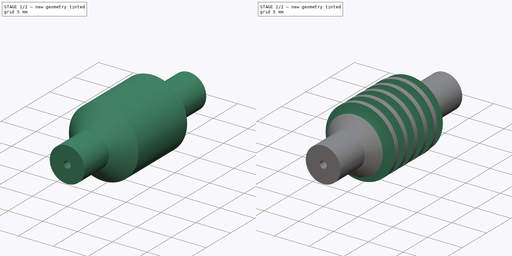
[diagram: build sequence overview — one tinted view per stage of 2, left to right]
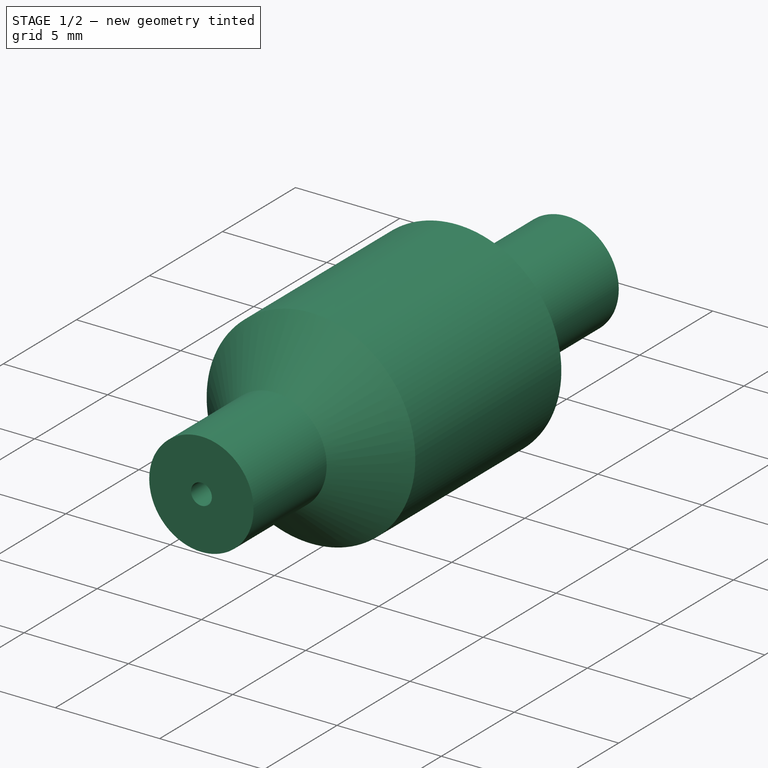
[diagram: stage 1 of 2 — iso view after this stage's code; geometry added in this stage tinted green]
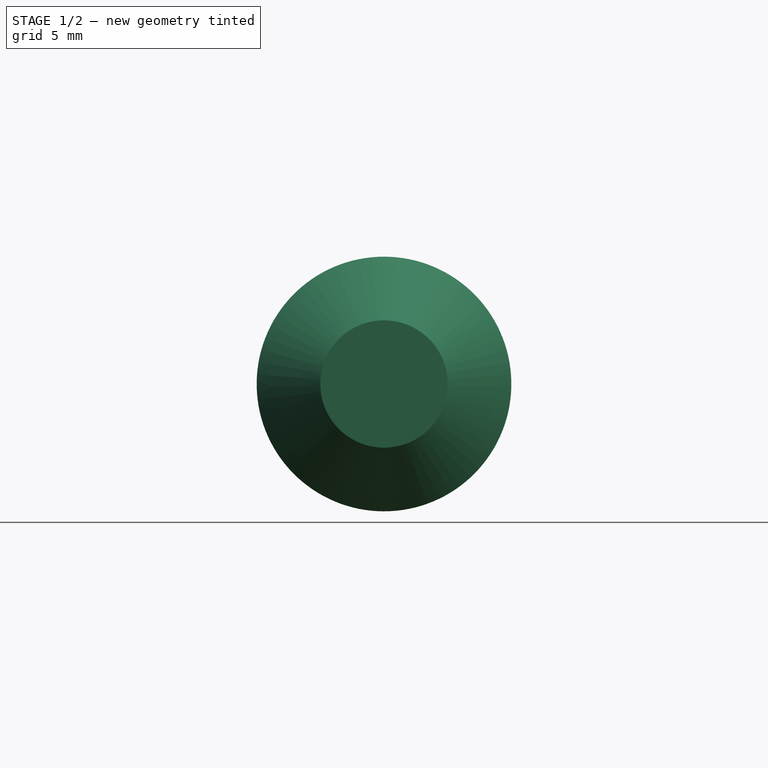
[diagram: stage 1 of 2 — front view after this stage's code; geometry added in this stage tinted green]
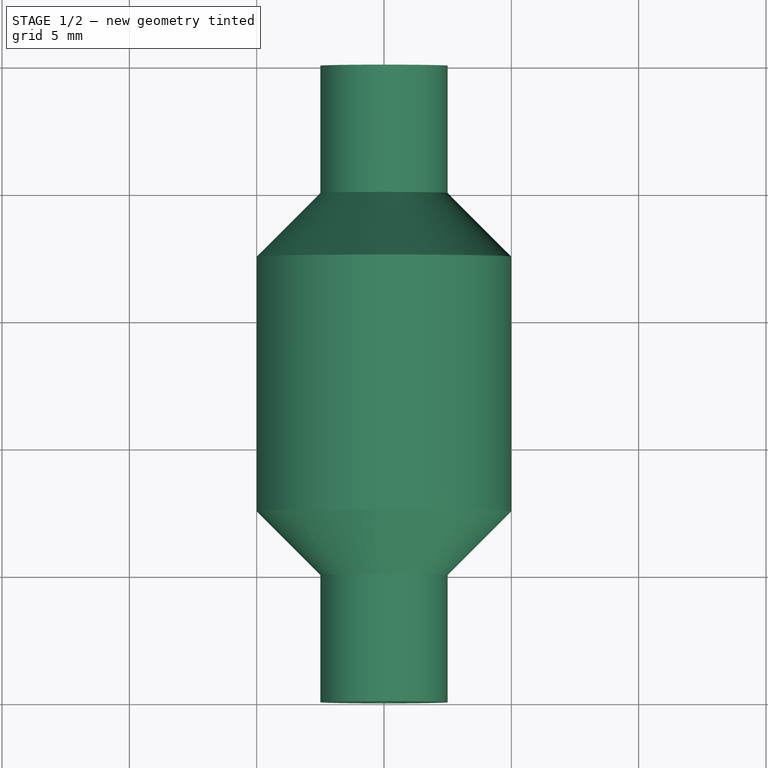
[diagram: stage 1 of 2 — top view after this stage's code; geometry added in this stage tinted green]
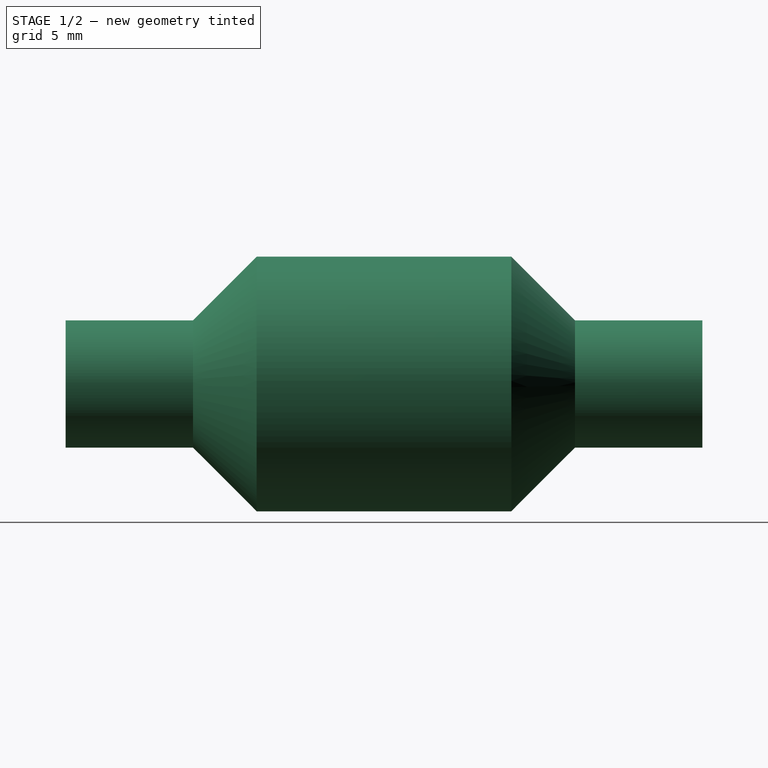
[diagram: stage 1 of 2 — right view after this stage's code; geometry added in this stage tinted green]
FCSTD DOCUMENT  (FreeCAD 0.18R16131 (Git))
Label: Worm
License: All rights reserved
LicenseURL: http://en.wikipedia.org/wiki/All_rights_reserved
objects: Sketcher::SketchObject×2, PartDesign::Revolution×1, PartDesign::Groove×1, PartDesign::Body×1
note: 7 computed .brp shape members not serialized (recipe doc carries the construction recipe); baked Part::Feature solids carry a one-line shape summary decoded from their .brp

FEATURE [Sketcher::SketchObject] Sketch
  MapMode = 5
  Placement = pos=(0,0,0) rot=(0.57735,0.57735,0.57735;2.0944rad)
  Support = -> [YZ_Plane]
  sketch-geometry (11):
    g0: LineSegment StartX=5 StartY=0 StartZ=0 EndX=5 EndY=0.5 EndZ=0
    g1: LineSegment StartX=5 StartY=0.5 StartZ=0 EndX=0 EndY=0.5 EndZ=0
    g2: LineSegment StartX=0 StartY=0.5 StartZ=0 EndX=0 EndY=2.5 EndZ=0
    g3: LineSegment StartX=5 StartY=0 StartZ=0 EndX=25 EndY=0 EndZ=0
    g4: LineSegment StartX=25 StartY=0 StartZ=0 EndX=25 EndY=2.5 EndZ=0
    g5: LineSegment StartX=25 StartY=2.5 StartZ=0 EndX=20 EndY=2.5 EndZ=0
    g6: LineSegment StartX=0 StartY=2.5 StartZ=0 EndX=5 EndY=2.5 EndZ=0
    g7: LineSegment StartX=5 StartY=2.5 StartZ=0 EndX=7.5 EndY=5 EndZ=0
    g8: LineSegment StartX=7.5 StartY=5 StartZ=0 EndX=17.5 EndY=5 EndZ=0
    g9: LineSegment StartX=17.5 StartY=5 StartZ=0 EndX=20 EndY=2.5 EndZ=0
    g10: LineSegment [constr] StartX=5 StartY=2.5 StartZ=0 EndX=20 EndY=2.5 EndZ=0
  constraints (33):
    c: Vertical(g0)
    c: Coincident(g1,g0)
    c: Horizontal(g1)
    c: Coincident(g2,g1)
    c: Vertical(g2)
    c: PointOnObject(g0,g-1)
    c: PointOnObject(g1,g-2)
    c: DistanceY(g-1,g2) = 2.5
    c: DistanceX(g1,g1) = 5
    c: Coincident(g3,g0)
    c: Coincident(g4,g3)
    c: Vertical(g4)
    c: PointOnObject(g3,g-1)
    c: Coincident(g5,g4)
    c: Horizontal(g5)
    c: DistanceX(g5,g5) = 5
    c: DistanceY(g0,g0) = 0.5
    c: Coincident(g6,g2)
    c: Horizontal(g6)
    c: Coincident(g7,g6)
    c: Coincident(g8,g7)
    c: Horizontal(g8)
    c: Coincident(g9,g8)
    c: Coincident(g9,g5)
    c: DistanceX(g-1,g5) = 20
    c: DistanceX(g-1,g6) = 5
    c: Equal(g7,g9)
    c: Coincident(g10,g6)
    c: Coincident(g10,g5)
    c: Horizontal(g10)
    c: Equal(g9,g7)
    c: DistanceX(g8,g8) = 10
    c: DistanceY(g-1,g7) = 5
FEATURE [PartDesign::Revolution] Revolution
  Angle = 360
  Axis = (1e-16,1,-1e-16)
  Base = (0,0,0)
  Placement = pos=(0,0,0) rot=(0.57735,0.57735,0.57735;2.0944rad)
  Profile = -> Sketch
  ReferenceAxis = -> Y_Axis
  Reversed = true
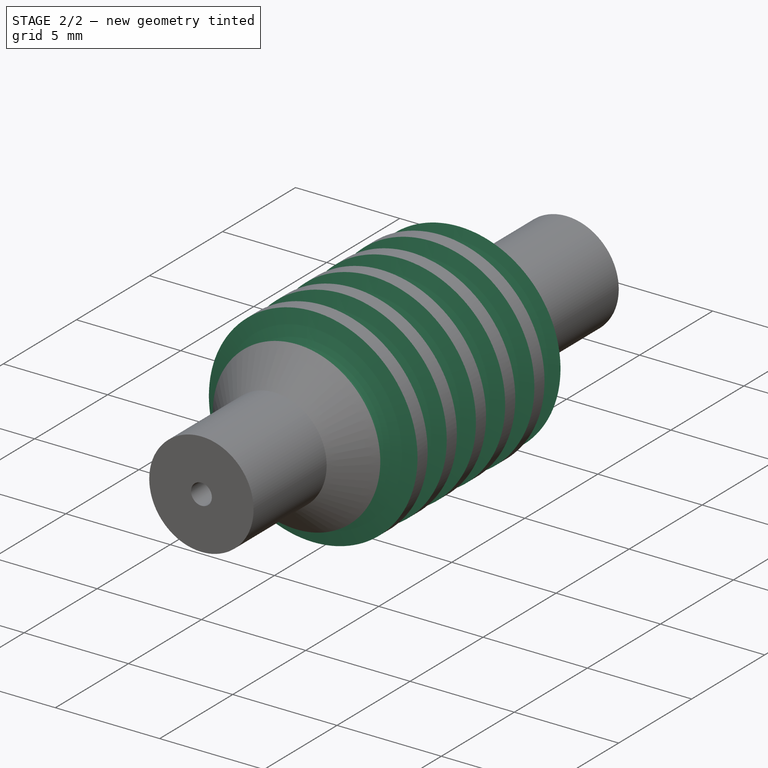
[diagram: stage 2 of 2 — iso view after this stage's code; geometry added in this stage tinted green]
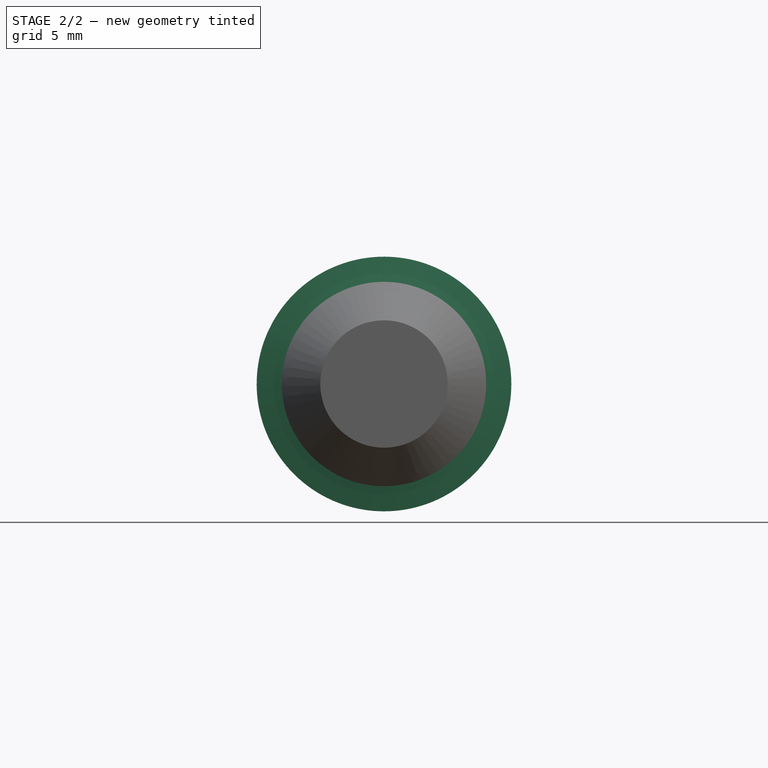
[diagram: stage 2 of 2 — front view after this stage's code; geometry added in this stage tinted green]
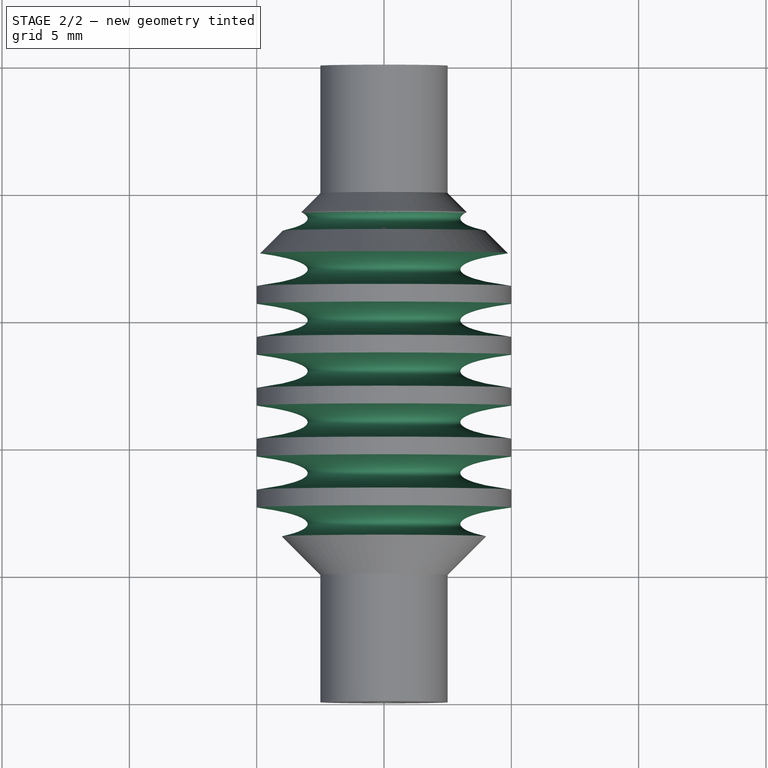
[diagram: stage 2 of 2 — top view after this stage's code; geometry added in this stage tinted green]
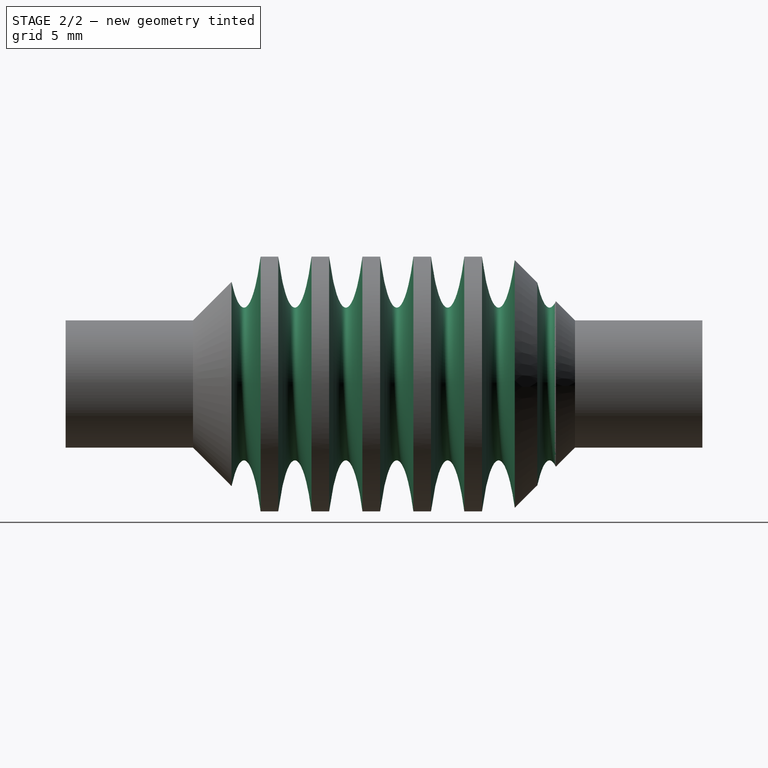
[diagram: stage 2 of 2 — right view after this stage's code; geometry added in this stage tinted green]
FEATURE [Sketcher::SketchObject] Sketch001
  MapMode = 5
  Placement = pos=(0,0,0) rot=(0.57735,0.57735,0.57735;2.0944rad)
  Support = -> [YZ_Plane]
  sketch-geometry (59):
    g0: Ellipse CenterX=5 CenterY=9 CenterZ=0 NormalX=0 NormalY=0 NormalZ=1 MajorRadius=6 MinorRadius=0.876197 AngleXU=-1.5708
    g1: LineSegment [constr] StartX=5 StartY=3 StartZ=0 EndX=5 EndY=15 EndZ=0
    g2: LineSegment [constr] StartX=5.8762 StartY=9 StartZ=0 EndX=4.1238 EndY=9 EndZ=0
    g3: GeomPoint X=5 Y=3.06432 Z=0
    g4: GeomPoint X=5 Y=14.9357 Z=0
    g5: Ellipse CenterX=7 CenterY=9 CenterZ=0 NormalX=0 NormalY=0 NormalZ=1 MajorRadius=6 MinorRadius=0.876197 AngleXU=-1.5708
    g6: LineSegment [constr] StartX=7 StartY=3 StartZ=0 EndX=7 EndY=15 EndZ=0
    g7: LineSegment [constr] StartX=7.8762 StartY=9 StartZ=0 EndX=6.1238 EndY=9 EndZ=0
    g8: GeomPoint X=7 Y=3.06432 Z=0
    g9: GeomPoint X=7 Y=14.9357 Z=0
    g10: LineSegment [constr] StartX=5 StartY=9 StartZ=0 EndX=7 EndY=9 EndZ=0
    g11: Ellipse CenterX=9 CenterY=9 CenterZ=0 NormalX=0 NormalY=0 NormalZ=1 MajorRadius=6 MinorRadius=0.876195 AngleXU=-1.5708
    g12: LineSegment [constr] StartX=9 StartY=3 StartZ=0 EndX=9 EndY=15 EndZ=0
    g13: LineSegment [constr] StartX=9.8762 StartY=9 StartZ=0 EndX=8.1238 EndY=9 EndZ=0
    g14: GeomPoint X=9 Y=3.06432 Z=0
    g15: GeomPoint X=9 Y=14.9357 Z=0
    g16: LineSegment [constr] StartX=7 StartY=9 StartZ=0 EndX=9 EndY=9 EndZ=0
    g17: Ellipse CenterX=11 CenterY=9 CenterZ=0 NormalX=0 NormalY=0 NormalZ=1 MajorRadius=6 MinorRadius=0.876196 AngleXU=-1.5708
    g18: LineSegment [constr] StartX=11 StartY=3 StartZ=0 EndX=11 EndY=15 EndZ=0
    g19: LineSegment [constr] StartX=11.8762 StartY=9 StartZ=0 EndX=10.1238 EndY=9 EndZ=0
    g20: GeomPoint X=11 Y=3.06432 Z=0
    g21: GeomPoint X=11 Y=14.9357 Z=0
    g22: LineSegment [constr] StartX=9 StartY=9 StartZ=0 EndX=11 EndY=9 EndZ=0
    g23: Ellipse CenterX=13 CenterY=9 CenterZ=0 NormalX=0 NormalY=0 NormalZ=1 MajorRadius=6 MinorRadius=0.876197 AngleXU=-1.5708
    g24: LineSegment [constr] StartX=13 StartY=3 StartZ=0 EndX=13 EndY=15 EndZ=0
    g25: LineSegment [constr] StartX=13.8762 StartY=9 StartZ=0 EndX=12.1238 EndY=9 EndZ=0
    g26: GeomPoint X=13 Y=3.06432 Z=0
    g27: GeomPoint X=13 Y=14.9357 Z=0
    g28: LineSegment [constr] StartX=11 StartY=9 StartZ=0 EndX=13 EndY=9 EndZ=0
    g29: Ellipse CenterX=15 CenterY=9 CenterZ=0 NormalX=0 NormalY=0 NormalZ=1 MajorRadius=6 MinorRadius=0.876198 AngleXU=-1.5708
    g30: LineSegment [constr] StartX=15 StartY=3 StartZ=0 EndX=15 EndY=15 EndZ=0
    g31: LineSegment [constr] StartX=15.8762 StartY=9 StartZ=0 EndX=14.1238 EndY=9 EndZ=0
    g32: GeomPoint X=15 Y=3.06432 Z=0
    g33: GeomPoint X=15 Y=14.9357 Z=0
    g34: LineSegment [constr] StartX=13 StartY=9 StartZ=0 EndX=15 EndY=9 EndZ=0
    g35: Ellipse CenterX=17 CenterY=9 CenterZ=0 NormalX=0 NormalY=0 NormalZ=1 MajorRadius=6 MinorRadius=0.876195 AngleXU=-1.5708
    g36: LineSegment [constr] StartX=17 StartY=3 StartZ=0 EndX=17 EndY=15 EndZ=0
    g37: LineSegment [constr] StartX=17.8762 StartY=9 StartZ=0 EndX=16.1238 EndY=9 EndZ=0
    g38: GeomPoint X=17 Y=3.06432 Z=0
    g39: GeomPoint X=17 Y=14.9357 Z=0
    g40: LineSegment [constr] StartX=15 StartY=9 StartZ=0 EndX=17 EndY=9 EndZ=0
    g41: Ellipse CenterX=19 CenterY=9 CenterZ=0 NormalX=0 NormalY=0 NormalZ=1 MajorRadius=6 MinorRadius=0.876198 AngleXU=-1.5708
    g42: LineSegment [constr] StartX=19 StartY=3 StartZ=0 EndX=19 EndY=15 EndZ=0
    g43: LineSegment [constr] StartX=19.8762 StartY=9 StartZ=0 EndX=18.1238 EndY=9 EndZ=0
    g44: GeomPoint X=19 Y=3.06432 Z=0
    g45: GeomPoint X=19 Y=14.9357 Z=0
    g46: LineSegment [constr] StartX=17 StartY=9 StartZ=0 EndX=19 EndY=9 EndZ=0
    g47: Ellipse CenterX=21 CenterY=9 CenterZ=0 NormalX=0 NormalY=0 NormalZ=1 MajorRadius=6 MinorRadius=0.876195 AngleXU=-1.5708
    g48: LineSegment [constr] StartX=21 StartY=3 StartZ=0 EndX=21 EndY=15 EndZ=0
    g49: LineSegment [constr] StartX=21.8762 StartY=9 StartZ=0 EndX=20.1238 EndY=9 EndZ=0
    g50: GeomPoint X=21 Y=3.06432 Z=0
    g51: GeomPoint X=21 Y=14.9357 Z=0
    g52: LineSegment [constr] StartX=19 StartY=9 StartZ=0 EndX=21 EndY=9 EndZ=0
    g53: Ellipse CenterX=23 CenterY=9 CenterZ=0 NormalX=0 NormalY=0 NormalZ=1 MajorRadius=6 MinorRadius=0.876199 AngleXU=-1.5708
    g54: LineSegment [constr] StartX=23 StartY=3 StartZ=0 EndX=23 EndY=15 EndZ=0
    g55: LineSegment [constr] StartX=23.8762 StartY=9 StartZ=0 EndX=22.1238 EndY=9 EndZ=0
    g56: GeomPoint X=23 Y=3.06432 Z=0
    g57: GeomPoint X=23 Y=14.9357 Z=0
    g58: LineSegment [constr] StartX=21 StartY=9 StartZ=0 EndX=23 EndY=9 EndZ=0
  constraints (68):
    c: InternalAlignment(g1-g4 -> g0) x4
    c: Vertical(g1)
    c: DistanceY(g1,g1) = 12
    c: DistanceX(g-1,g0) = 5
    c: DistanceY(g-1,g1) = 3
    c: InternalAlignment(g6-g9 -> g5) x4
    c: Vertical(g6)
    c: DistanceY(g6,g6) = 12
    c: Coincident(g0,g10)
    c: Coincident(g5,g10)
    c: Distance(g10) = 2
    c: Angle(g10) = 0
    c: InternalAlignment(g12-g15 -> g11) x4
    c: Vertical(g12)
    c: DistanceY(g12,g12) = 12
    c: Coincident(g5,g16)
    c: Coincident(g11,g16)
    c: Equal(g10,g16)
    c: Parallel(g16,g10)
    c: InternalAlignment(g18-g21 -> g17) x4
    c: Vertical(g18)
    c: DistanceY(g18,g18) = 12
    c: Coincident(g11,g22)
    c: Coincident(g17,g22)
    c: Equal(g10,g22)
    c: Parallel(g22,g10)
    c: InternalAlignment(g24-g27 -> g23) x4
    c: Vertical(g24)
    c: DistanceY(g24,g24) = 12
    c: Coincident(g17,g28)
    c: Coincident(g23,g28)
    c: Equal(g10,g28)
    c: Parallel(g28,g10)
    c: InternalAlignment(g30-g33 -> g29) x4
    c: Vertical(g30)
    c: DistanceY(g30,g30) = 12
    c: Coincident(g23,g34)
    c: Coincident(g29,g34)
    c: Equal(g10,g34)
    c: Parallel(g34,g10)
    c: InternalAlignment(g36-g39 -> g35) x4
    c: Vertical(g36)
    c: DistanceY(g36,g36) = 12
    c: Coincident(g29,g40)
    c: Coincident(g35,g40)
    c: Equal(g10,g40)
    c: Parallel(g40,g10)
    c: InternalAlignment(g42-g45 -> g41) x4
    c: Vertical(g42)
    c: DistanceY(g42,g42) = 12
    c: Coincident(g35,g46)
    c: Coincident(g41,g46)
    c: Equal(g10,g46)
    c: Parallel(g46,g10)
    c: InternalAlignment(g48-g51 -> g47) x4
    c: Vertical(g48)
    c: DistanceY(g48,g48) = 12
    c: Coincident(g41,g52)
    c: Coincident(g47,g52)
    c: Equal(g10,g52)
    c: Parallel(g52,g10)
    c: InternalAlignment(g54-g57 -> g53) x4
    c: Vertical(g54)
    c: DistanceY(g54,g54) = 12
    c: Coincident(g47,g58)
    c: Coincident(g53,g58)
    c: Equal(g10,g58)
    c: Parallel(g58,g10)
FEATURE [PartDesign::Groove] Groove
  Angle = 360
  Axis = (1e-16,1,-1e-16)
  Base = (0,0,0)
  BaseFeature = -> Revolution
  Placement = pos=(0,0,0) rot=(0.57735,0.57735,0.57735;2.0944rad)
  Profile = -> Sketch001
  ReferenceAxis = -> Y_Axis
FEATURE [PartDesign::Body] Body
  Group = -> [Sketch,Revolution,Sketch001,Groove]
  Origin = -> Origin
  Tip = -> Groove
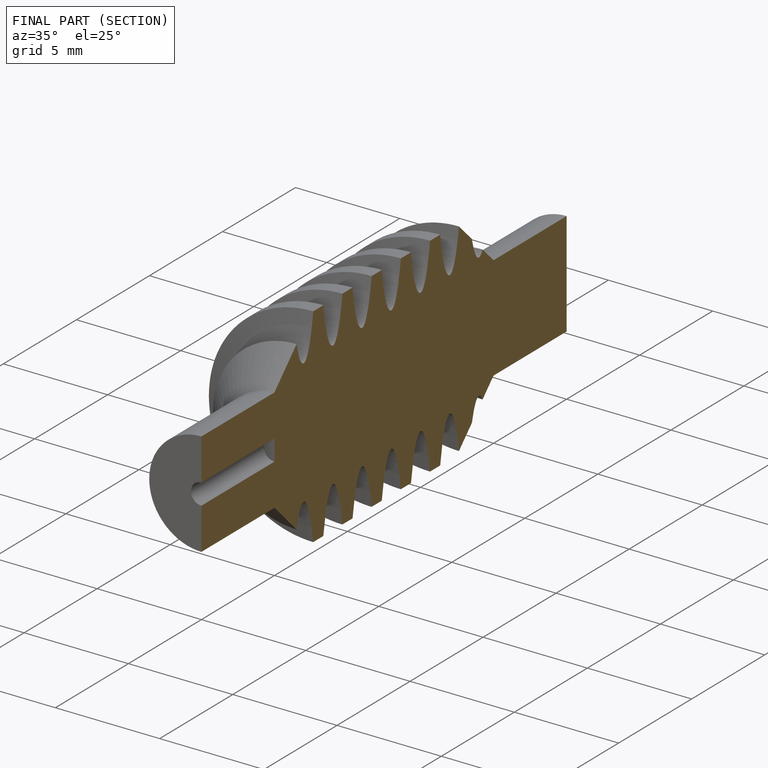
[diagram: finished part — half-section view (interior)]
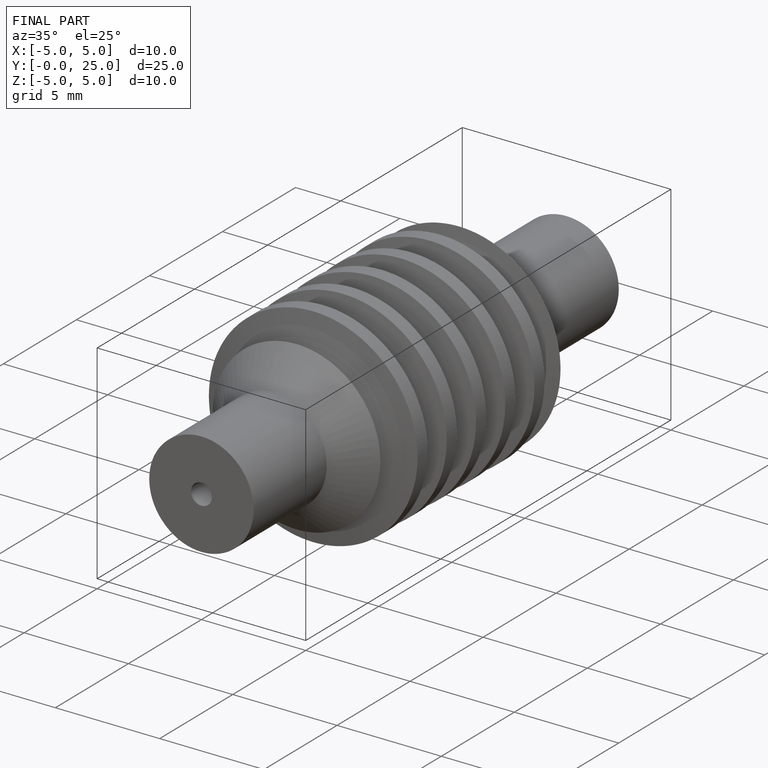
[diagram: finished part — iso view with bounding-box wireframe]
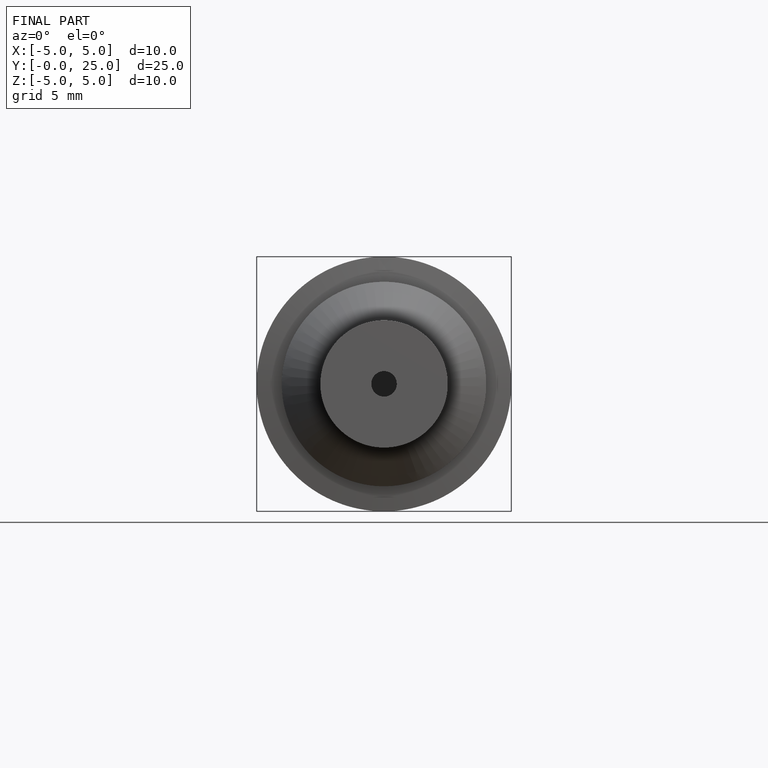
[diagram: finished part — front view with bounding-box wireframe]
